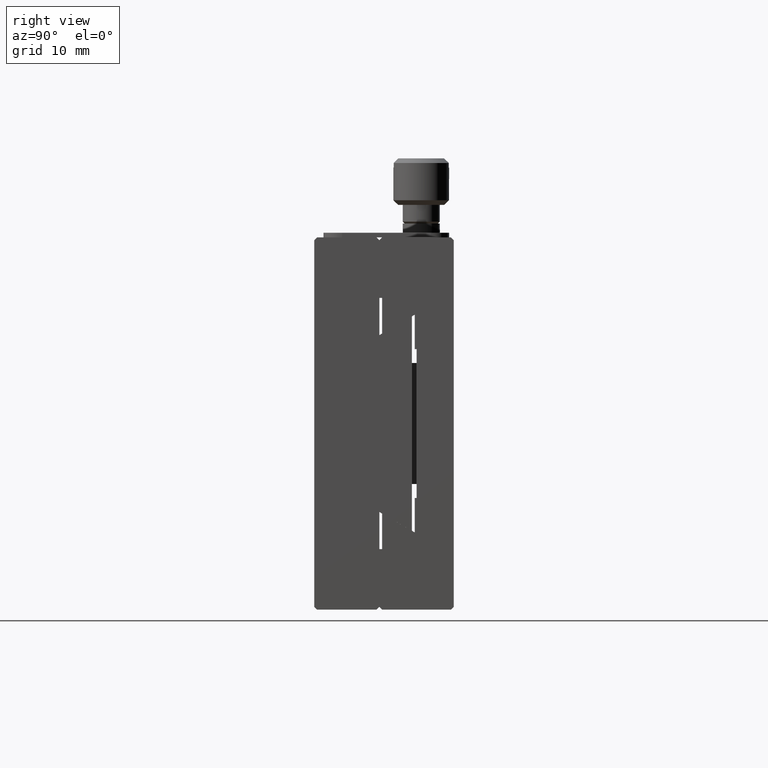
[diagram: clean part render]
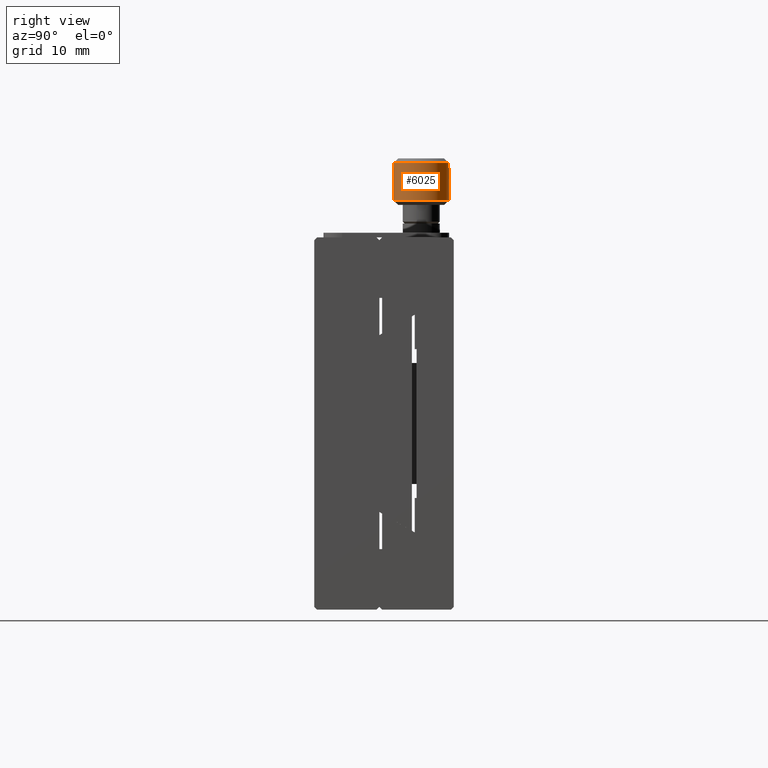
[diagram: same view with one face highlighted and labeled with its STEP entity id]
A machine part, right view. The second image highlights one B-rep face of the part: STEP entity #6025.
In plain terms, the highlighted cylindrical surface (bore or boss wall) has radius 3 mm, axis along (0, 0, -1).
Its self-contained STEP definition (entity closure, byte-faithful):
#183 = ORIENTED_EDGE ( 'NONE', *, *, #6681, .F. ) ;
#436 = DIRECTION ( 'NONE',  ( 0.000000000000000000, 0.000000000000000000, -1.000000000000000000 ) ) ;
#541 = VERTEX_POINT ( 'NONE', #850 ) ;
#850 = CARTESIAN_POINT ( 'NONE',  ( 11.50000000000000000, 8.541960108450190603, 7.500000000000000000 ) ) ;
#872 = CARTESIAN_POINT ( 'NONE',  ( 12.50000000000000000, 8.541960108450188827, 8.500000000000000000 ) ) ;
#925 = VECTOR ( 'NONE', #1547, 1000.000000000000000 ) ;
#1251 = LINE ( 'NONE', #5342, #4530 ) ;
#1454 = VERTEX_POINT ( 'NONE', #6355 ) ;
#1476 = LINE ( 'NONE', #5566, #925 ) ;
#1547 = DIRECTION ( 'NONE',  ( -0.000000000000000000, -0.000000000000000000, 1.000000000000000000 ) ) ;
#1771 = DIRECTION ( 'NONE',  ( -1.000000000000000000, -1.734723475976807686E-15, 0.000000000000000000 ) ) ;
#1804 = EDGE_CURVE ( 'NONE', #12847, #7337, #4764, .T. ) ;
#1844 = DIRECTION ( 'NONE',  ( 0.000000000000000000, 0.000000000000000000, -1.000000000000000000 ) ) ;
#2118 = EDGE_CURVE ( 'NONE', #11981, #6646, #6893, .T. ) ;
#2130 = DIRECTION ( 'NONE',  ( -1.000000000000000000, 0.000000000000000000, 0.000000000000000000 ) ) ;
#2379 = CARTESIAN_POINT ( 'NONE',  ( 12.50000000000000000, 14.45803989154980762, 7.500000000000000000 ) ) ;
#3209 = CARTESIAN_POINT ( 'NONE',  ( 14.99999999998635758, 11.50000000000000000, 4.000000000019099389 ) ) ;
#3354 = ORIENTED_EDGE ( 'NONE', *, *, #8098, .F. ) ;
#3384 = CARTESIAN_POINT ( 'NONE',  ( 12.00000000000000000, 11.50000000000000000, 7.500000000000000000 ) ) ;
#3405 = VERTEX_POINT ( 'NONE', #3209 ) ;
#3464 = DIRECTION ( 'NONE',  ( -1.000000000000000000, 0.000000000000000000, 0.000000000000000000 ) ) ;
#3588 = CIRCLE ( 'NONE', #10620, 2.999999999999999112 ) ;
#4009 = DIRECTION ( 'NONE',  ( -1.000000000000000000, -6.360652745248294783E-15, 0.000000000000000000 ) ) ;
#4107 = CARTESIAN_POINT ( 'NONE',  ( 12.50000000000000000, 8.541960108450190603, 8.000000000011821655 ) ) ;
#4156 = EDGE_CURVE ( 'NONE', #7337, #6646, #1476, .T. ) ;
#4530 = VECTOR ( 'NONE', #436, 1000.000000000000000 ) ;
#4579 = ORIENTED_EDGE ( 'NONE', *, *, #11169, .F. ) ;
#4764 = CIRCLE ( 'NONE', #4986, 2.999999999999999112 ) ;
#4912 = CARTESIAN_POINT ( 'NONE',  ( 11.50000000000000000, 14.45803989154980762, 8.000000000011823431 ) ) ;
#4928 = LINE ( 'NONE', #8134, #10829 ) ;
#4942 = CARTESIAN_POINT ( 'NONE',  ( 12.00000000000000000, 11.50000000000000000, 7.500000000000000000 ) ) ;
#4986 = AXIS2_PLACEMENT_3D ( 'NONE', #4942, #9030, #4009 ) ;
#5077 = FACE_OUTER_BOUND ( 'NONE', #12947, .T. ) ;
#5217 = CYLINDRICAL_SURFACE ( 'NONE', #8941, 2.999999999999999112 ) ;
#5342 = CARTESIAN_POINT ( 'NONE',  ( 11.50000000000000000, 8.541960108450188827, 7.500000000000000000 ) ) ;
#5566 = CARTESIAN_POINT ( 'NONE',  ( 11.50000000000000000, 14.45803989154980762, 7.500000000000000000 ) ) ;
#5747 = AXIS2_PLACEMENT_3D ( 'NONE', #3384, #9924, #1771 ) ;
#5762 = CARTESIAN_POINT ( 'NONE',  ( 11.50000000000000000, 8.541960108444278887, 8.000000000005995204 ) ) ;
#5778 = ORIENTED_EDGE ( 'NONE', *, *, #9532, .F. ) ;
#5786 = CARTESIAN_POINT ( 'NONE',  ( 12.50000000000000000, 8.541960108450190603, 7.500000000000000000 ) ) ;
#5846 = DIRECTION ( 'NONE',  ( 0.000000000000000000, 0.000000000000000000, 1.000000000000000000 ) ) ;
#6025 = ADVANCED_FACE ( 'NONE', ( #12421, #5077 ), #5217, .T. ) ;
#6355 = CARTESIAN_POINT ( 'NONE',  ( 12.50000000000000000, 14.45803989155571756, 8.000000000005995204 ) ) ;
#6542 = DIRECTION ( 'NONE',  ( 0.000000000000000000, 0.000000000000000000, -1.000000000000000000 ) ) ;
#6646 = VERTEX_POINT ( 'NONE', #4912 ) ;
#6658 = VERTEX_POINT ( 'NONE', #5786 ) ;
#6681 = EDGE_CURVE ( 'NONE', #3405, #3405, #12459, .T. ) ;
#6706 = ORIENTED_EDGE ( 'NONE', *, *, #7943, .T. ) ;
#6893 = CIRCLE ( 'NONE', #10299, 2.999999999999999112 ) ;
#6904 = VERTEX_POINT ( 'NONE', #4107 ) ;
#7132 = DIRECTION ( 'NONE',  ( -0.000000000000000000, -0.000000000000000000, -1.000000000000000000 ) ) ;
#7137 = ORIENTED_EDGE ( 'NONE', *, *, #8844, .F. ) ;
#7146 = CARTESIAN_POINT ( 'NONE',  ( 12.00000000000000000, 11.50000000000000000, -2.500000000000000000 ) ) ;
#7337 = VERTEX_POINT ( 'NONE', #8172 ) ;
#7765 = AXIS2_PLACEMENT_3D ( 'NONE', #12058, #8996, #8872 ) ;
#7805 = ORIENTED_EDGE ( 'NONE', *, *, #4156, .F. ) ;
#7943 = EDGE_CURVE ( 'NONE', #1454, #6904, #3588, .T. ) ;
#8098 = EDGE_CURVE ( 'NONE', #1454, #12847, #4928, .T. ) ;
#8134 = CARTESIAN_POINT ( 'NONE',  ( 12.50000000000000000, 14.45803989154980762, 8.500000000000000000 ) ) ;
#8135 = CARTESIAN_POINT ( 'NONE',  ( 12.00000000000000000, 11.50000000000000000, 8.000000000000000000 ) ) ;
#8172 = CARTESIAN_POINT ( 'NONE',  ( 11.50000000000000000, 14.45803989154980762, 7.500000000000000000 ) ) ;
#8759 = ORIENTED_EDGE ( 'NONE', *, *, #2118, .T. ) ;
#8844 = EDGE_CURVE ( 'NONE', #6658, #6904, #9840, .T. ) ;
#8872 = DIRECTION ( 'NONE',  ( 1.000000000000000000, 0.000000000000000000, 0.000000000000000000 ) ) ;
#8941 = AXIS2_PLACEMENT_3D ( 'NONE', #7146, #12216, #2130 ) ;
#8996 = DIRECTION ( 'NONE',  ( -0.000000000000000000, -0.000000000000000000, -1.000000000000000000 ) ) ;
#9030 = DIRECTION ( 'NONE',  ( -0.000000000000000000, -0.000000000000000000, 1.000000000000000000 ) ) ;
#9532 = EDGE_CURVE ( 'NONE', #11981, #541, #1251, .T. ) ;
#9840 = LINE ( 'NONE', #872, #12562 ) ;
#9924 = DIRECTION ( 'NONE',  ( -0.000000000000000000, -0.000000000000000000, 1.000000000000000000 ) ) ;
#10221 = CIRCLE ( 'NONE', #5747, 2.999999999999999112 ) ;
#10299 = AXIS2_PLACEMENT_3D ( 'NONE', #8135, #1844, #13081 ) ;
#10620 = AXIS2_PLACEMENT_3D ( 'NONE', #12615, #6542, #3464 ) ;
#10829 = VECTOR ( 'NONE', #7132, 1000.000000000000000 ) ;
#11169 = EDGE_CURVE ( 'NONE', #541, #6658, #10221, .T. ) ;
#11398 = EDGE_LOOP ( 'NONE', ( #5778, #8759, #7805, #12189, #3354, #6706, #7137, #4579 ) ) ;
#11981 = VERTEX_POINT ( 'NONE', #5762 ) ;
#12058 = CARTESIAN_POINT ( 'NONE',  ( 12.00000000000000000, 11.50000000000000000, 4.000000000019099389 ) ) ;
#12189 = ORIENTED_EDGE ( 'NONE', *, *, #1804, .F. ) ;
#12216 = DIRECTION ( 'NONE',  ( 0.000000000000000000, 0.000000000000000000, -1.000000000000000000 ) ) ;
#12421 = FACE_OUTER_BOUND ( 'NONE', #11398, .T. ) ;
#12459 = CIRCLE ( 'NONE', #7765, 2.999999999986357135 ) ;
#12562 = VECTOR ( 'NONE', #5846, 1000.000000000000000 ) ;
#12615 = CARTESIAN_POINT ( 'NONE',  ( 12.00000000000000000, 11.50000000000000000, 8.000000000000000000 ) ) ;
#12847 = VERTEX_POINT ( 'NONE', #2379 ) ;
#12947 = EDGE_LOOP ( 'NONE', ( #183 ) ) ;
#13081 = DIRECTION ( 'NONE',  ( -1.000000000000000000, 0.000000000000000000, 0.000000000000000000 ) ) ;